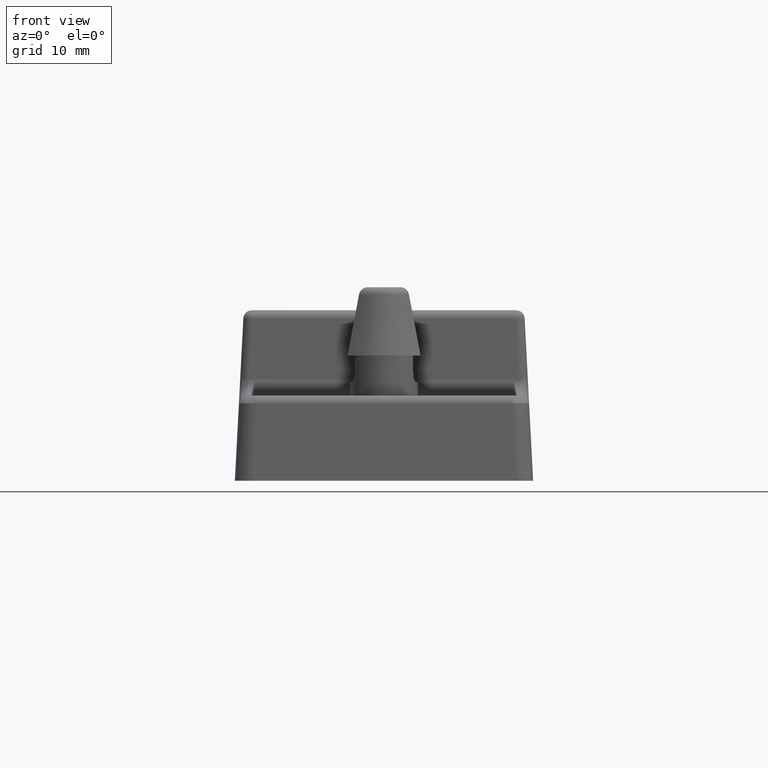
[diagram: clean part render]
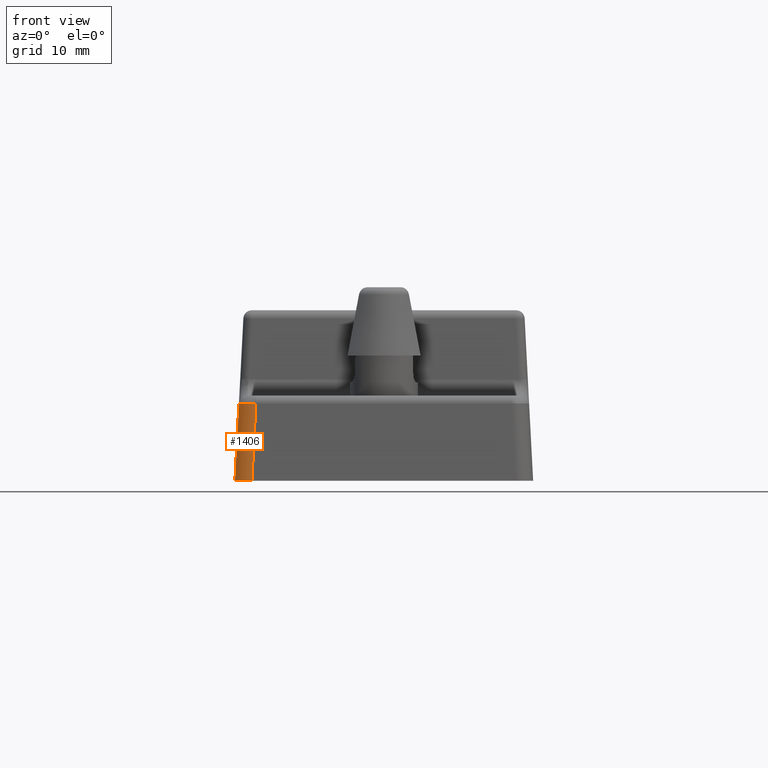
[diagram: same view with one face highlighted and labeled with its STEP entity id]
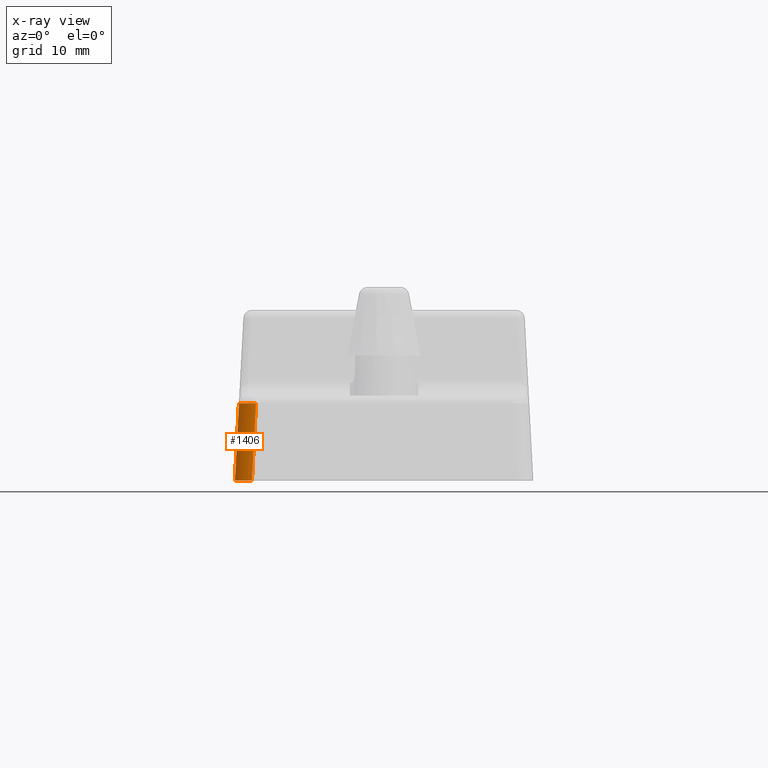
[diagram: x-ray of the same camera — body ghosted, the highlighted face saturated]
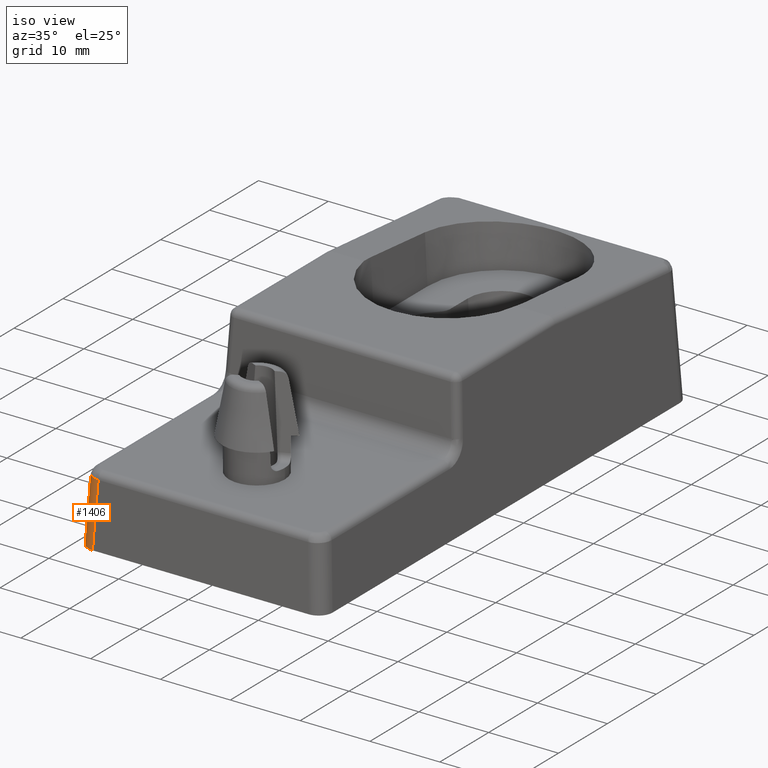
[diagram: same view with one face highlighted and labeled with its STEP entity id]
A machine part, front view. The second image highlights one B-rep face of the part: STEP entity #1406.
The next image is the same camera in x-ray: the body ghosted, the highlighted face saturated — about 0% of this face is hidden behind the body in this view.
A second angle (iso view) of the same face is appended — the face is thin or edge-on in the first view.
In plain terms, the highlighted cylindrical surface (edge-blend (fillet) strip) has radius 2 mm, axis along (0.0523, 0.0523, 0.9973).
Its self-contained STEP definition (entity closure, byte-faithful):
#92 = CYLINDRICAL_SURFACE ( 'NONE', #873, 2.000000000000001800 ) ;
#149 = VERTEX_POINT ( 'NONE', #3026 ) ;
#240 = VECTOR ( 'NONE', #1443, 1000.000000000000100 ) ;
#253 = VERTEX_POINT ( 'NONE', #812 ) ;
#457 = EDGE_LOOP ( 'NONE', ( #704, #2362, #1279, #2483 ) ) ;
#506 = CARTESIAN_POINT ( 'NONE',  ( -15.50181872332125000, -37.49907779283040600, -10.00000000000000000 ) ) ;
#584 = DIRECTION ( 'NONE',  ( -0.05226442768871397000, -0.05226442768871397000, -0.9972646886342373400 ) ) ;
#633 = CARTESIAN_POINT ( 'NONE',  ( -17.02466496803968400, -35.02740589853056700, -0.9476640437570569300 ) ) ;
#704 = ORIENTED_EDGE ( 'NONE', *, *, #2751, .F. ) ;
#729 = CARTESIAN_POINT ( 'NONE',  ( -16.77845602255819600, -34.78119695304907600, 3.750282498716652800 ) ) ;
#769 = CARTESIAN_POINT ( 'NONE',  ( -17.02466496803968400, -35.02740589853056700, -0.9476640437570569300 ) ) ;
#812 = CARTESIAN_POINT ( 'NONE',  ( -17.49907779283040600, -35.50181872332125700, -10.00000000000000000 ) ) ;
#873 = AXIS2_PLACEMENT_3D ( 'NONE', #923, #2584, #1146 ) ;
#923 = CARTESIAN_POINT ( 'NONE',  ( -14.78119695304904700, -34.78119695304906100, 3.645610586230763900 ) ) ;
#1146 = DIRECTION ( 'NONE',  ( 0.0000000000000000000, -0.9986295347545739400, 0.05233595624294386200 ) ) ;
#1163 =( BOUNDED_CURVE ( )  B_SPLINE_CURVE ( 3, ( #1308, #2071, #2517, #633 ),
 .UNSPECIFIED., .F., .F. ) 
 B_SPLINE_CURVE_WITH_KNOTS ( ( 4, 4 ),
 ( 2.357564018062741100, 3.925621289116838900 ),
 .UNSPECIFIED. ) 
 CURVE ( )  GEOMETRIC_REPRESENTATION_ITEM ( )  RATIONAL_B_SPLINE_CURVE ( ( 1.000000000000000000, 0.8053830134673615200, 0.8053830134673615200, 1.000000000000000000 ) ) 
 REPRESENTATION_ITEM ( '' )  );
#1268 = FACE_OUTER_BOUND ( 'NONE', #457, .T. ) ;
#1279 = ORIENTED_EDGE ( 'NONE', *, *, #2280, .F. ) ;
#1308 = CARTESIAN_POINT ( 'NONE',  ( -15.02740589853053700, -37.02466496803968700, -0.9476640437570566000 ) ) ;
#1406 = ADVANCED_FACE ( 'NONE', ( #1268 ), #92, .T. ) ;
#1443 = DIRECTION ( 'NONE',  ( 0.05226442768871395600, 0.05226442768871398400, 0.9972646886342373400 ) ) ;
#1528 =( BOUNDED_CURVE ( )  B_SPLINE_CURVE ( 3, ( #506, #1947, #3086, #2386 ),
 .UNSPECIFIED., .F., .T. ) 
 B_SPLINE_CURVE_WITH_KNOTS ( ( 4, 4 ),
 ( 2.357564018062737500, 3.925621289116854000 ),
 .UNSPECIFIED. ) 
 CURVE ( )  GEOMETRIC_REPRESENTATION_ITEM ( )  RATIONAL_B_SPLINE_CURVE ( ( 1.000000000000000000, 0.8053830134673571900, 0.8053830134673571900, 1.000000000000000000 ) ) 
 REPRESENTATION_ITEM ( '' )  );
#1557 = VECTOR ( 'NONE', #584, 1000.000000000000100 ) ;
#1749 = VERTEX_POINT ( 'NONE', #769 ) ;
#1820 = VERTEX_POINT ( 'NONE', #2986 ) ;
#1947 = CARTESIAN_POINT ( 'NONE',  ( -16.67244870823686000, -37.49907779283042000, -10.00000000000000000 ) ) ;
#2017 = CARTESIAN_POINT ( 'NONE',  ( -14.98319658424949800, -36.98045565375865400, -0.1041000750898311000 ) ) ;
#2071 = CARTESIAN_POINT ( 'NONE',  ( -16.19643705433710300, -37.02306613893066600, -0.9171565669873874600 ) ) ;
#2113 = EDGE_CURVE ( 'NONE', #149, #253, #1528, .T. ) ;
#2280 = EDGE_CURVE ( 'NONE', #253, #1749, #2935, .T. ) ;
#2296 = LINE ( 'NONE', #2017, #1557 ) ;
#2362 = ORIENTED_EDGE ( 'NONE', *, *, #2788, .T. ) ;
#2386 = CARTESIAN_POINT ( 'NONE',  ( -17.49907779283040600, -35.50181872332125700, -10.00000000000000000 ) ) ;
#2483 = ORIENTED_EDGE ( 'NONE', *, *, #2113, .F. ) ;
#2517 = CARTESIAN_POINT ( 'NONE',  ( -17.02306613893064800, -36.19643705433713200, -0.9171565669873874600 ) ) ;
#2584 = DIRECTION ( 'NONE',  ( 0.05226442768871396300, 0.05226442768871397000, 0.9972646886342373400 ) ) ;
#2751 = EDGE_CURVE ( 'NONE', #1820, #149, #2296, .T. ) ;
#2788 = EDGE_CURVE ( 'NONE', #1820, #1749, #1163, .T. ) ;
#2935 = LINE ( 'NONE', #729, #240 ) ;
#2986 = CARTESIAN_POINT ( 'NONE',  ( -15.02740589853053700, -37.02466496803968700, -0.9476640437570566000 ) ) ;
#3026 = CARTESIAN_POINT ( 'NONE',  ( -15.50181872332125000, -37.49907779283040600, -10.00000000000000000 ) ) ;
#3086 = CARTESIAN_POINT ( 'NONE',  ( -17.49907779283040900, -36.67244870823686400, -10.00000000000000000 ) ) ;